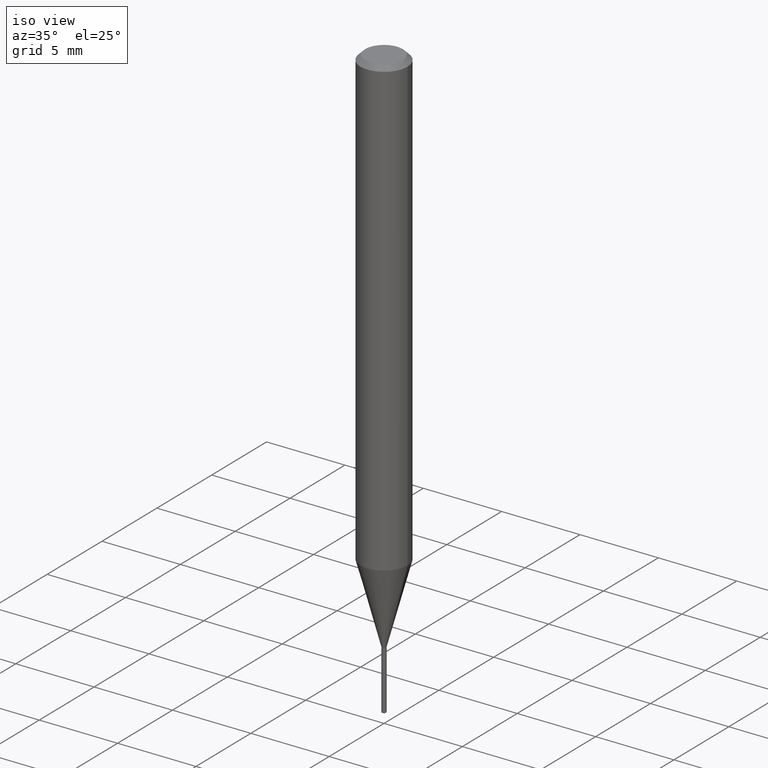
[diagram: clean part render]
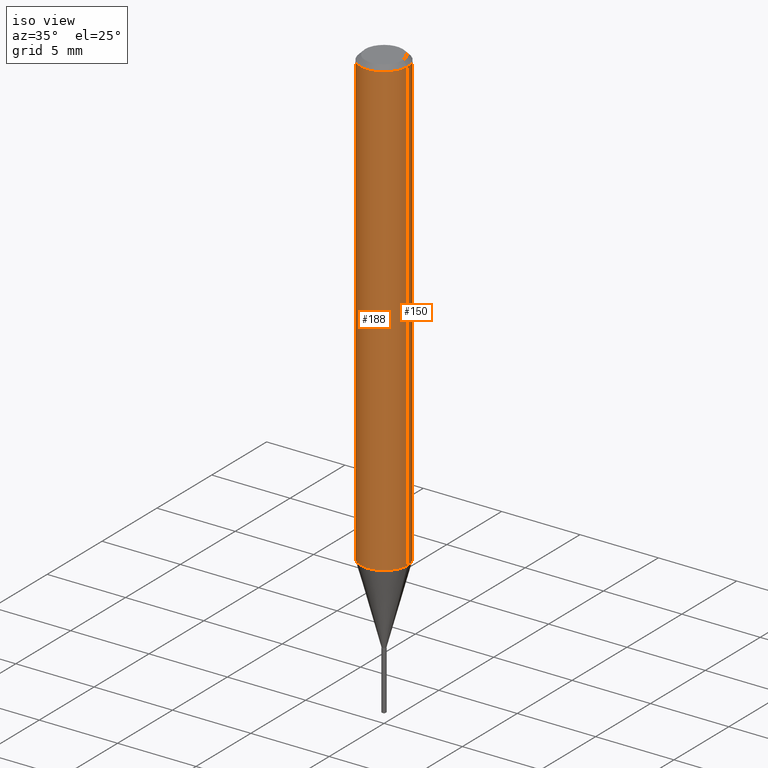
[diagram: same view with one multi-face feature highlighted, each face labeled with its STEP entity id]
A machine part, iso view. The highlighted faces form ONE feature: a constant-radius fillet chain: 2 tangent blend faces with common blend radius 1.4999 mm. The faces share edges in the B-rep.
Their STEP definitions:
[1] entity #150 (Cylinder):
#10 = EDGE_CURVE ( 'NONE', #460, #453, #215, .T. ) ;
#40 = AXIS2_PLACEMENT_3D ( 'NONE', #255, #287, #474 ) ;
#45 = CYLINDRICAL_SURFACE ( 'NONE', #192, 0.05905000000000006771 ) ;
#60 = CARTESIAN_POINT ( 'NONE',  ( -0.05905000000000006771, 4.195754854663396409E-16, -2.904631170795525045E-30 ) ) ;
#71 = CARTESIAN_POINT ( 'NONE',  ( 0.05904999999999999832, -4.535783407291118600E-16, -0.01181000000000007044 ) ) ;
#94 = VECTOR ( 'NONE', #482, 39.37007874015748143 ) ;
#109 = EDGE_CURVE ( 'NONE', #469, #453, #282, .T. ) ;
#129 = DIRECTION ( 'NONE',  ( 1.000000000000000000, -6.982962677686264344E-15, 0.000000000000000000 ) ) ;
#138 = ORIENTED_EDGE ( 'NONE', *, *, #109, .F. ) ;
#150 = ADVANCED_FACE ( 'NONE', ( #293 ), #45, .T. ) ;
#189 = ORIENTED_EDGE ( 'NONE', *, *, #410, .T. ) ;
#192 = AXIS2_PLACEMENT_3D ( 'NONE', #246, #429, #467 ) ;
#196 = LINE ( 'NONE', #451, #94 ) ;
#215 = LINE ( 'NONE', #60, #216 ) ;
#216 = VECTOR ( 'NONE', #291, 39.37007874015748143 ) ;
#246 = CARTESIAN_POINT ( 'NONE',  ( 0.000000000000000000, 0.000000000000000000, 0.000000000000000000 ) ) ;
#255 = CARTESIAN_POINT ( 'NONE',  ( 2.888098660104663766E-31, -4.123439461173779647E-17, -0.01181000000000007044 ) ) ;
#262 = EDGE_LOOP ( 'NONE', ( #189, #263, #138, #314 ) ) ;
#263 = ORIENTED_EDGE ( 'NONE', *, *, #10, .T. ) ;
#282 = CIRCLE ( 'NONE', #40, 0.05904999999999999832 ) ;
#287 = DIRECTION ( 'NONE',  ( -2.445468806185136597E-29, 3.491481338843145583E-15, 1.000000000000000000 ) ) ;
#291 = DIRECTION ( 'NONE',  ( -2.445468806185136877E-29, 3.491481338843145188E-15, 1.000000000000000000 ) ) ;
#293 = FACE_OUTER_BOUND ( 'NONE', #262, .T. ) ;
#313 = AXIS2_PLACEMENT_3D ( 'NONE', #337, #487, #129 ) ;
#314 = ORIENTED_EDGE ( 'NONE', *, *, #367, .F. ) ;
#337 = CARTESIAN_POINT ( 'NONE',  ( 2.798355503914224078E-29, -3.995310018534680444E-15, -1.144302269093172786 ) ) ;
#367 = EDGE_CURVE ( 'NONE', #426, #469, #196, .T. ) ;
#383 = CIRCLE ( 'NONE', #313, 0.05905000000000013710 ) ;
#410 = EDGE_CURVE ( 'NONE', #426, #460, #383, .T. ) ;
#413 = CARTESIAN_POINT ( 'NONE',  ( -0.05905000000000013710, -3.575734533068340951E-15, -1.144302269093172786 ) ) ;
#426 = VERTEX_POINT ( 'NONE', #457 ) ;
#429 = DIRECTION ( 'NONE',  ( -2.445468806185136597E-29, 3.491481338843145583E-15, 1.000000000000000000 ) ) ;
#451 = CARTESIAN_POINT ( 'NONE',  ( 0.05905000000000006771, -4.123439461173745257E-16, 2.879382386107503723E-30 ) ) ;
#453 = VERTEX_POINT ( 'NONE', #454 ) ;
#454 = CARTESIAN_POINT ( 'NONE',  ( -0.05904999999999999832, -1.598696721106868410E-15, -0.01181000000000007044 ) ) ;
#457 = CARTESIAN_POINT ( 'NONE',  ( 0.05905000000000013710, -4.407653964652056153E-15, -1.144302269093172786 ) ) ;
#460 = VERTEX_POINT ( 'NONE', #413 ) ;
#467 = DIRECTION ( 'NONE',  ( 1.000000000000000000, -6.982962677686266711E-15, 4.876176775795936353E-29 ) ) ;
#469 = VERTEX_POINT ( 'NONE', #71 ) ;
#474 = DIRECTION ( 'NONE',  ( 1.000000000000000000, -6.982962677686266711E-15, 0.000000000000000000 ) ) ;
#482 = DIRECTION ( 'NONE',  ( -2.445468806185136877E-29, 3.491481338843145188E-15, 1.000000000000000000 ) ) ;
#487 = DIRECTION ( 'NONE',  ( -2.445468806185136597E-29, 3.491481338843145583E-15, 1.000000000000000000 ) ) ;
[2] entity #188 (Cylinder):
#7 = DIRECTION ( 'NONE',  ( -2.445468806185136597E-29, 3.491481338843145583E-15, 1.000000000000000000 ) ) ;
#10 = EDGE_CURVE ( 'NONE', #460, #453, #215, .T. ) ;
#47 = AXIS2_PLACEMENT_3D ( 'NONE', #435, #7, #134 ) ;
#60 = CARTESIAN_POINT ( 'NONE',  ( -0.05905000000000006771, 4.195754854663396409E-16, -2.904631170795525045E-30 ) ) ;
#64 = CARTESIAN_POINT ( 'NONE',  ( 2.798355503914224078E-29, -3.995310018534680444E-15, -1.144302269093172786 ) ) ;
#71 = CARTESIAN_POINT ( 'NONE',  ( 0.05904999999999999832, -4.535783407291118600E-16, -0.01181000000000007044 ) ) ;
#75 = ORIENTED_EDGE ( 'NONE', *, *, #367, .T. ) ;
#84 = AXIS2_PLACEMENT_3D ( 'NONE', #64, #296, #371 ) ;
#88 = ORIENTED_EDGE ( 'NONE', *, *, #234, .F. ) ;
#94 = VECTOR ( 'NONE', #482, 39.37007874015748143 ) ;
#134 = DIRECTION ( 'NONE',  ( 1.000000000000000000, -6.982962677686266711E-15, 0.000000000000000000 ) ) ;
#163 = ORIENTED_EDGE ( 'NONE', *, *, #331, .T. ) ;
#167 = CYLINDRICAL_SURFACE ( 'NONE', #352, 0.05905000000000006771 ) ;
#188 = ADVANCED_FACE ( 'NONE', ( #323 ), #167, .T. ) ;
#196 = LINE ( 'NONE', #451, #94 ) ;
#198 = CIRCLE ( 'NONE', #84, 0.05905000000000013710 ) ;
#202 = ORIENTED_EDGE ( 'NONE', *, *, #10, .F. ) ;
#215 = LINE ( 'NONE', #60, #216 ) ;
#216 = VECTOR ( 'NONE', #291, 39.37007874015748143 ) ;
#234 = EDGE_CURVE ( 'NONE', #453, #469, #450, .T. ) ;
#291 = DIRECTION ( 'NONE',  ( -2.445468806185136877E-29, 3.491481338843145188E-15, 1.000000000000000000 ) ) ;
#296 = DIRECTION ( 'NONE',  ( -2.445468806185136597E-29, 3.491481338843145583E-15, 1.000000000000000000 ) ) ;
#319 = DIRECTION ( 'NONE',  ( -2.445468806185136597E-29, 3.491481338843145583E-15, 1.000000000000000000 ) ) ;
#323 = FACE_OUTER_BOUND ( 'NONE', #416, .T. ) ;
#326 = CARTESIAN_POINT ( 'NONE',  ( 0.000000000000000000, 0.000000000000000000, 0.000000000000000000 ) ) ;
#331 = EDGE_CURVE ( 'NONE', #460, #426, #198, .T. ) ;
#352 = AXIS2_PLACEMENT_3D ( 'NONE', #326, #319, #360 ) ;
#360 = DIRECTION ( 'NONE',  ( 1.000000000000000000, -6.982962677686266711E-15, 4.876176775795936353E-29 ) ) ;
#367 = EDGE_CURVE ( 'NONE', #426, #469, #196, .T. ) ;
#371 = DIRECTION ( 'NONE',  ( 1.000000000000000000, -6.982962677686264344E-15, 0.000000000000000000 ) ) ;
#413 = CARTESIAN_POINT ( 'NONE',  ( -0.05905000000000013710, -3.575734533068340951E-15, -1.144302269093172786 ) ) ;
#416 = EDGE_LOOP ( 'NONE', ( #202, #163, #75, #88 ) ) ;
#426 = VERTEX_POINT ( 'NONE', #457 ) ;
#435 = CARTESIAN_POINT ( 'NONE',  ( 2.888098660104663766E-31, -4.123439461173779647E-17, -0.01181000000000007044 ) ) ;
#450 = CIRCLE ( 'NONE', #47, 0.05904999999999999832 ) ;
#451 = CARTESIAN_POINT ( 'NONE',  ( 0.05905000000000006771, -4.123439461173745257E-16, 2.879382386107503723E-30 ) ) ;
#453 = VERTEX_POINT ( 'NONE', #454 ) ;
#454 = CARTESIAN_POINT ( 'NONE',  ( -0.05904999999999999832, -1.598696721106868410E-15, -0.01181000000000007044 ) ) ;
#457 = CARTESIAN_POINT ( 'NONE',  ( 0.05905000000000013710, -4.407653964652056153E-15, -1.144302269093172786 ) ) ;
#460 = VERTEX_POINT ( 'NONE', #413 ) ;
#469 = VERTEX_POINT ( 'NONE', #71 ) ;
#482 = DIRECTION ( 'NONE',  ( -2.445468806185136877E-29, 3.491481338843145188E-15, 1.000000000000000000 ) ) ;